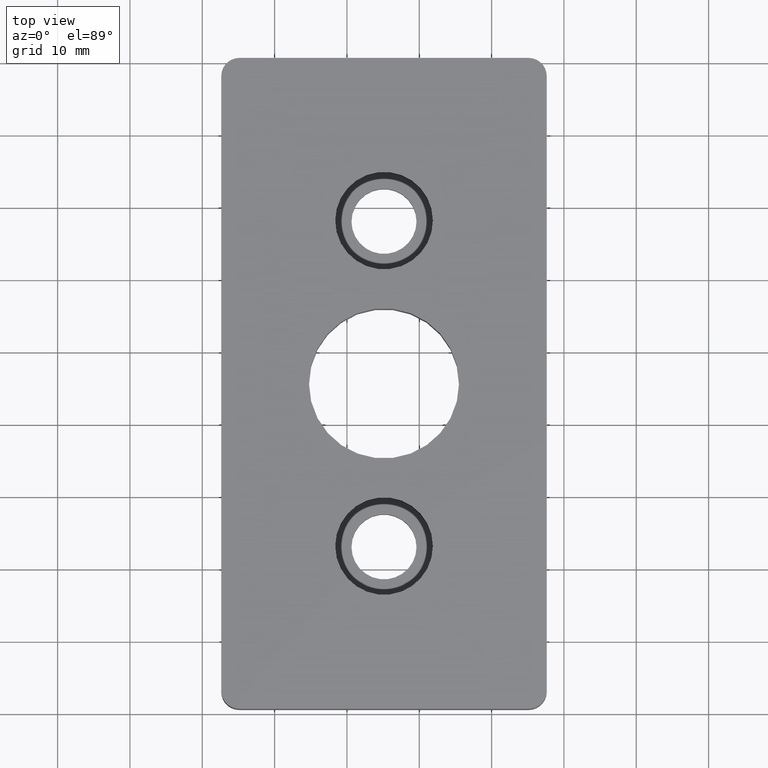
[diagram: clean part render]
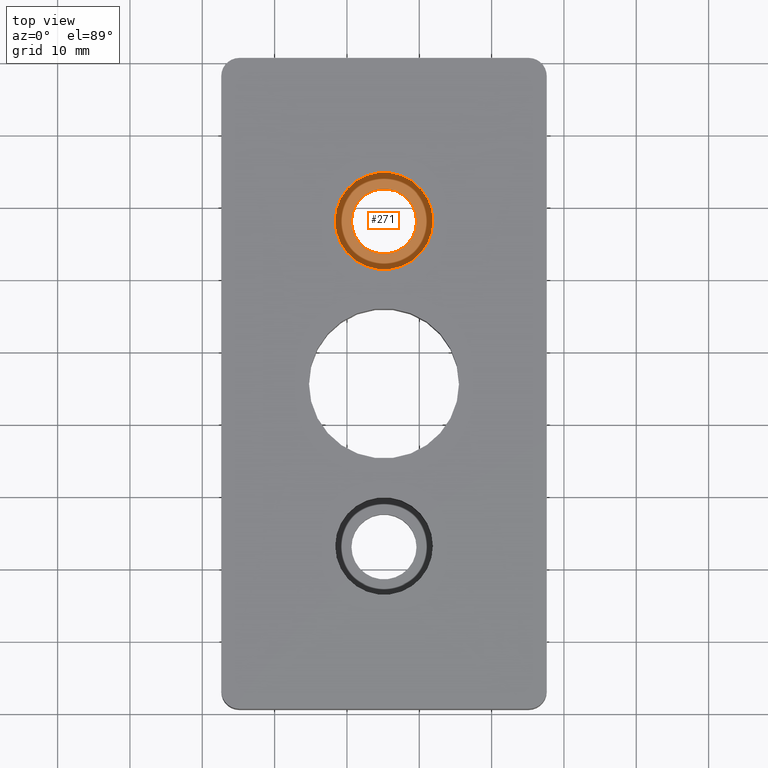
[diagram: same view with one face highlighted and labeled with its STEP entity id]
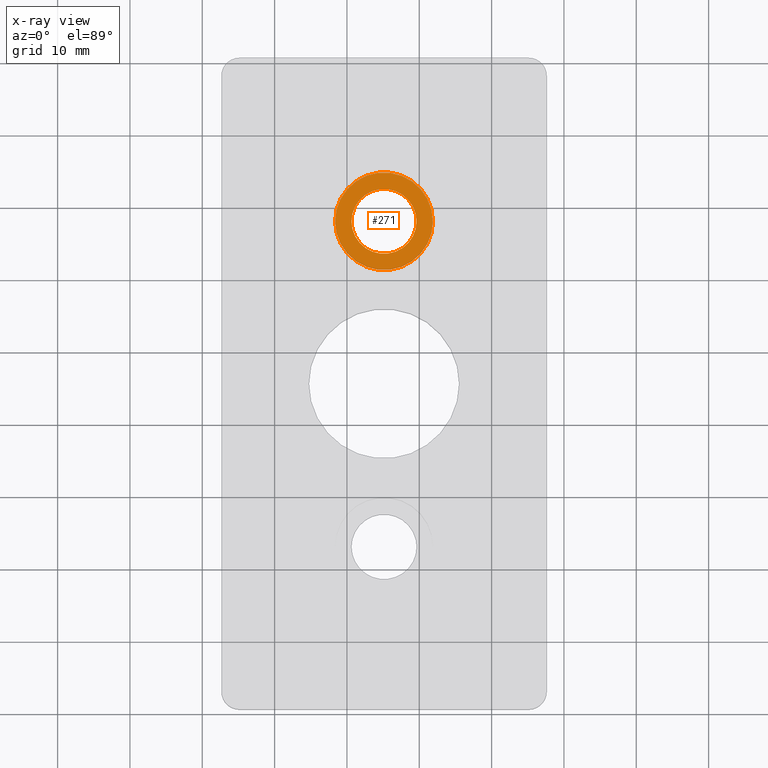
[diagram: x-ray of the same camera — body ghosted, the highlighted face saturated]
A machine part, top view. The second image highlights one B-rep face of the part: STEP entity #271.
The next image is the same camera in x-ray: the body ghosted, the highlighted face saturated — about 0% of this face is hidden behind the body in this view.
In plain terms, the highlighted planar face has unit normal (0, 0, 1).
Its self-contained STEP definition (entity closure, byte-faithful):
#47=PLANE('',#292);
#56=FACE_BOUND('',#88,.T.);
#69=FACE_OUTER_BOUND('',#87,.T.);
#87=EDGE_LOOP('',(#195));
#88=EDGE_LOOP('',(#196));
#117=CIRCLE('',#293,6.75);
#118=CIRCLE('',#294,4.5);
#135=VERTEX_POINT('',#419);
#136=VERTEX_POINT('',#421);
#161=EDGE_CURVE('',#135,#135,#117,.T.);
#162=EDGE_CURVE('',#136,#136,#118,.T.);
#195=ORIENTED_EDGE('',*,*,#161,.T.);
#196=ORIENTED_EDGE('',*,*,#162,.F.);
#271=ADVANCED_FACE('',(#69,#56),#47,.T.);
#292=AXIS2_PLACEMENT_3D('',#418,#332,#333);
#293=AXIS2_PLACEMENT_3D('',#420,#334,#335);
#294=AXIS2_PLACEMENT_3D('',#422,#336,#337);
#332=DIRECTION('center_axis',(0.,0.,1.));
#333=DIRECTION('ref_axis',(1.,0.,0.));
#334=DIRECTION('center_axis',(0.,0.,1.));
#335=DIRECTION('ref_axis',(1.,0.,0.));
#336=DIRECTION('center_axis',(0.,0.,1.));
#337=DIRECTION('ref_axis',(1.,0.,0.));
#418=CARTESIAN_POINT('Origin',(25.1256764380845,68.1013335529333,4.5));
#419=CARTESIAN_POINT('',(31.8756764380845,68.1013335529333,4.5));
#420=CARTESIAN_POINT('Origin',(25.1256764380845,68.1013335529333,4.5));
#421=CARTESIAN_POINT('',(20.6256764380845,68.1013335529333,4.49999999999999));
#422=CARTESIAN_POINT('Origin',(25.1256764380845,68.1013335529333,4.49999999999999));